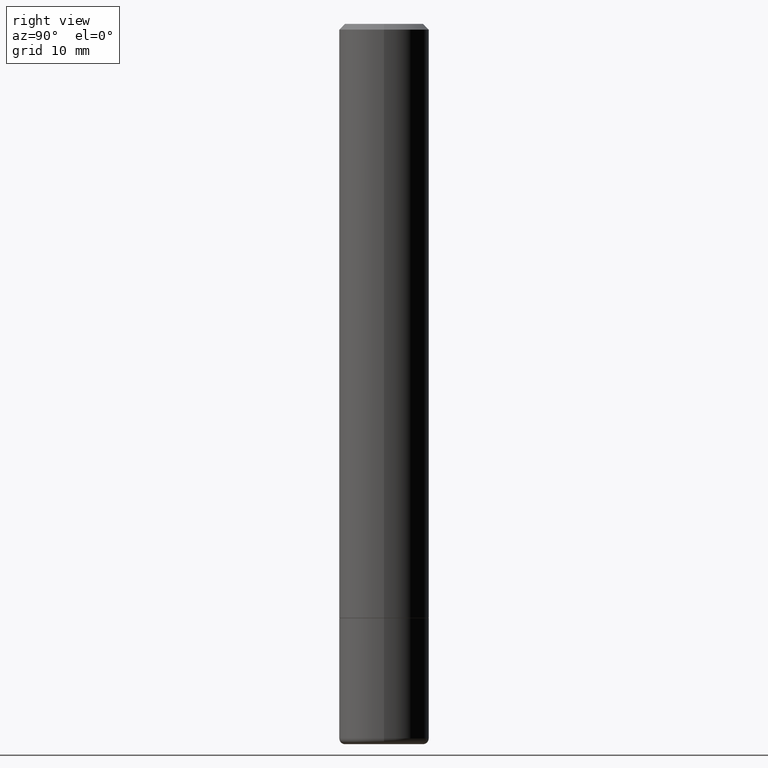
[diagram: clean part render]
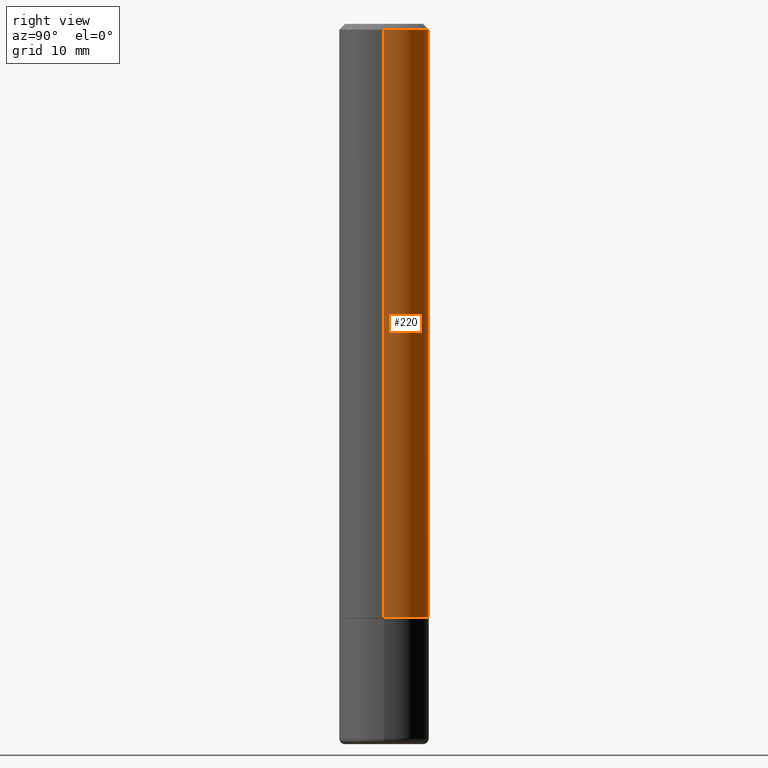
[diagram: same view with one face highlighted and labeled with its STEP entity id]
A machine part, right view. The second image highlights one B-rep face of the part: STEP entity #220.
In plain terms, the highlighted cylindrical surface (partial cylindrical patch) has radius 3.9687 mm, axis along (-0, 0, 1).
Its self-contained STEP definition (entity closure, byte-faithful):
#22 = DIRECTION ( 'NONE',  ( -2.445468806185136877E-29, 3.491481338843145188E-15, 1.000000000000000000 ) ) ;
#33 = CARTESIAN_POINT ( 'NONE',  ( 4.890937612370293302E-31, -6.982962677686318726E-17, -0.02000000000000008021 ) ) ;
#36 = DIRECTION ( 'NONE',  ( -2.445468806185136597E-29, 3.491481338843145583E-15, 1.000000000000000000 ) ) ;
#105 = CYLINDRICAL_SURFACE ( 'NONE', #138, 0.1562499999999995282 ) ;
#122 = EDGE_CURVE ( 'NONE', #334, #233, #431, .T. ) ;
#138 = AXIS2_PLACEMENT_3D ( 'NONE', #399, #216, #330 ) ;
#154 = CIRCLE ( 'NONE', #340, 0.1562499999999994726 ) ;
#158 = CARTESIAN_POINT ( 'NONE',  ( 5.041333943950659188E-29, -7.197688780025145571E-15, -2.061500000000000110 ) ) ;
#161 = VECTOR ( 'NONE', #441, 39.37007874015748143 ) ;
#177 = FACE_OUTER_BOUND ( 'NONE', #228, .T. ) ;
#195 = ORIENTED_EDGE ( 'NONE', *, *, #252, .T. ) ;
#216 = DIRECTION ( 'NONE',  ( -2.445468806185136597E-29, 3.491481338843145583E-15, 1.000000000000000000 ) ) ;
#217 = CARTESIAN_POINT ( 'NONE',  ( 0.1562499999999995282, -1.091087918388475821E-15, 7.619026212181126555E-30 ) ) ;
#220 = ADVANCED_FACE ( 'NONE', ( #177 ), #105, .T. ) ;
#223 = CARTESIAN_POINT ( 'NONE',  ( 0.1562499999999996392, -8.288776698413622377E-15, -2.061500000000000110 ) ) ;
#227 = CARTESIAN_POINT ( 'NONE',  ( 0.1562499999999994726, -1.141782438928661161E-15, -0.02000000000000008021 ) ) ;
#228 = EDGE_LOOP ( 'NONE', ( #305, #195, #487, #240 ) ) ;
#233 = VERTEX_POINT ( 'NONE', #227 ) ;
#238 = VECTOR ( 'NONE', #22, 39.37007874015748143 ) ;
#240 = ORIENTED_EDGE ( 'NONE', *, *, #122, .F. ) ;
#252 = EDGE_CURVE ( 'NONE', #459, #453, #333, .T. ) ;
#281 = AXIS2_PLACEMENT_3D ( 'NONE', #158, #315, #323 ) ;
#285 = CARTESIAN_POINT ( 'NONE',  ( -0.1562499999999994726, 1.021258291611612128E-15, -0.02000000000000008021 ) ) ;
#305 = ORIENTED_EDGE ( 'NONE', *, *, #381, .T. ) ;
#315 = DIRECTION ( 'NONE',  ( -2.445468806185136597E-29, 3.491481338843145583E-15, 1.000000000000000000 ) ) ;
#323 = DIRECTION ( 'NONE',  ( 1.000000000000000000, -6.982962677686266711E-15, 0.000000000000000000 ) ) ;
#330 = DIRECTION ( 'NONE',  ( 1.000000000000000000, -6.982962677686266711E-15, 4.876176775795935793E-29 ) ) ;
#333 = LINE ( 'NONE', #411, #161 ) ;
#334 = VERTEX_POINT ( 'NONE', #223 ) ;
#336 = DIRECTION ( 'NONE',  ( 1.000000000000000000, -6.982962677686265133E-15, 0.000000000000000000 ) ) ;
#340 = AXIS2_PLACEMENT_3D ( 'NONE', #33, #36, #336 ) ;
#344 = EDGE_CURVE ( 'NONE', #233, #453, #154, .T. ) ;
#381 = EDGE_CURVE ( 'NONE', #334, #459, #387, .T. ) ;
#387 = CIRCLE ( 'NONE', #281, 0.1562499999999996392 ) ;
#399 = CARTESIAN_POINT ( 'NONE',  ( 0.000000000000000000, 0.000000000000000000, 0.000000000000000000 ) ) ;
#411 = CARTESIAN_POINT ( 'NONE',  ( -0.1562499999999995282, 1.110223024625153188E-15, -7.685836078523267338E-30 ) ) ;
#431 = LINE ( 'NONE', #217, #238 ) ;
#435 = CARTESIAN_POINT ( 'NONE',  ( -0.1562499999999996392, -2.523536178775847500E-15, -2.061500000000000110 ) ) ;
#441 = DIRECTION ( 'NONE',  ( -2.445468806185136877E-29, 3.491481338843145188E-15, 1.000000000000000000 ) ) ;
#453 = VERTEX_POINT ( 'NONE', #285 ) ;
#459 = VERTEX_POINT ( 'NONE', #435 ) ;
#487 = ORIENTED_EDGE ( 'NONE', *, *, #344, .F. ) ;